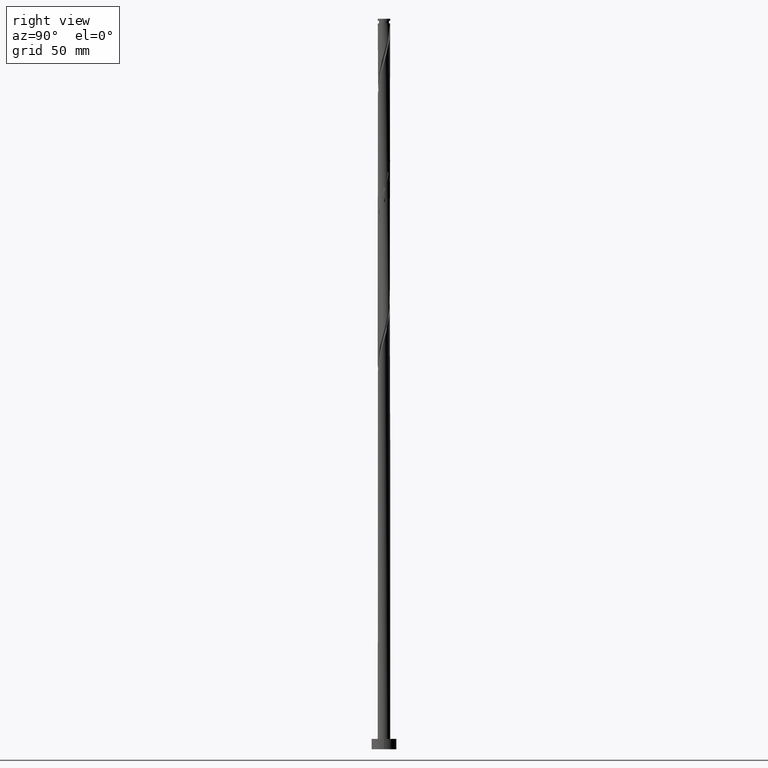
[diagram: clean part render]
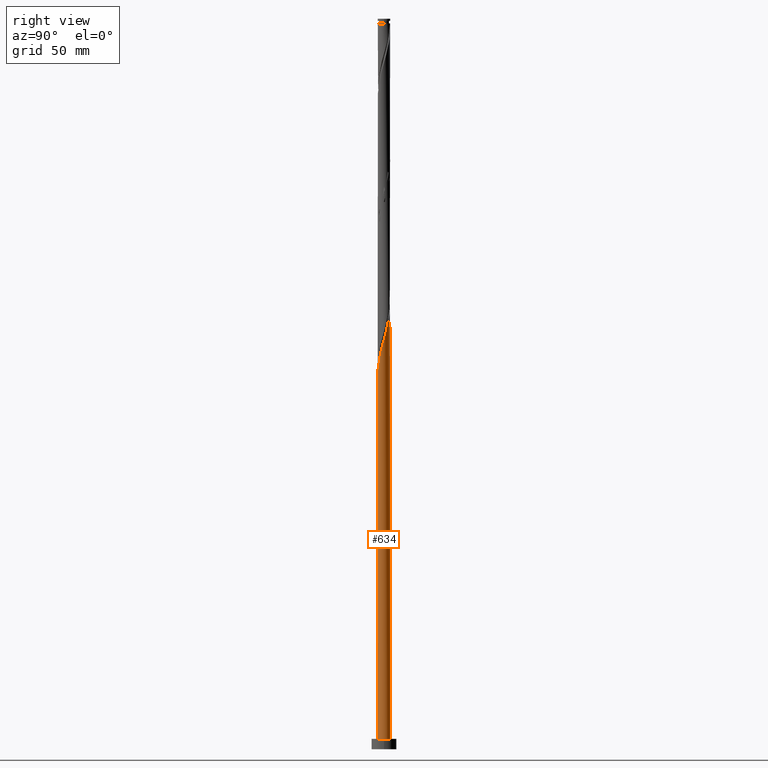
[diagram: same view with one face highlighted and labeled with its STEP entity id]
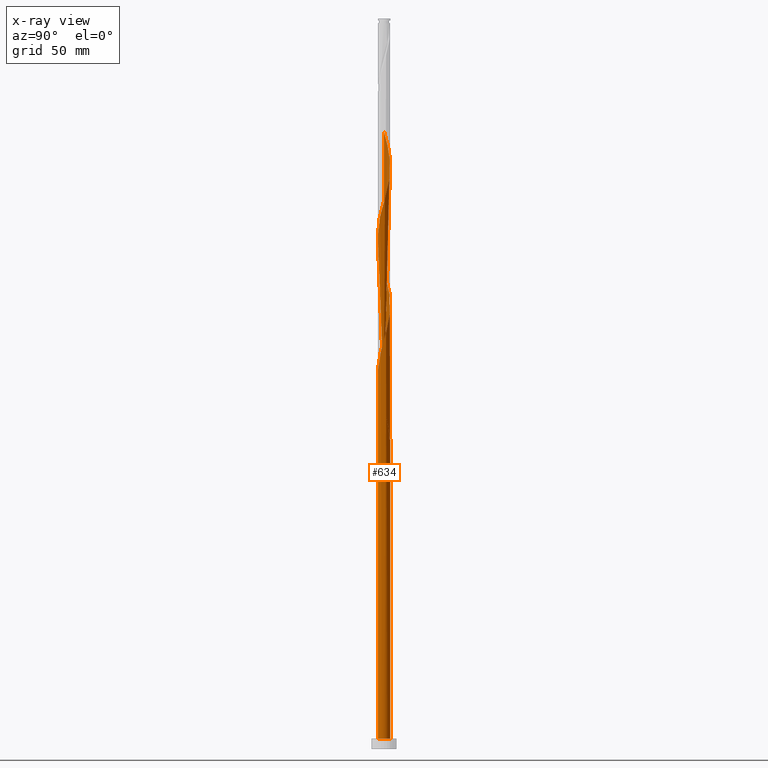
[diagram: x-ray of the same camera — body ghosted, the highlighted face saturated]
A machine part, right view. The second image highlights one B-rep face of the part: STEP entity #634.
The next image is the same camera in x-ray: the body ghosted, the highlighted face saturated — about 0% of this face is hidden behind the body in this view.
In plain terms, the highlighted cylindrical surface (bore or boss wall) has radius 3 mm, axis along (-0, -0, -1).
Its self-contained STEP definition (entity closure, byte-faithful):
#1 = CIRCLE ( 'NONE', #1276, 3.000000000000000444 ) ;
#10 = CARTESIAN_POINT ( 'NONE',  ( -0.2879860105828832562, 3.002746436205632641, 280.9817433603127483 ) ) ;
#20 = CARTESIAN_POINT ( 'NONE',  ( -2.844610918258240417, 0.9529893618115773402, 293.2039655825349200 ) ) ;
#33 = CARTESIAN_POINT ( 'NONE',  ( 0.000000000000000000, 0.000000000000000000, 148.7595211380904914 ) ) ;
#51 = VERTEX_POINT ( 'NONE', #382 ) ;
#57 = EDGE_CURVE ( 'NONE', #1315, #51, #763, .T. ) ;
#61 = CARTESIAN_POINT ( 'NONE',  ( 2.424175730171096443, -1.795214230025626634, 189.8706322492016341 ) ) ;
#66 = CIRCLE ( 'NONE', #1369, 3.000000000000000444 ) ;
#69 = CARTESIAN_POINT ( 'NONE',  ( -3.000000000000004441, 0.1709212123393005489, 296.0284865851844529 ) ) ;
#73 = CARTESIAN_POINT ( 'NONE',  ( 2.861491667719901599, 0.9010357570982406861, 199.8706322492016056 ) ) ;
#80 = CARTESIAN_POINT ( 'NONE',  ( 0.02731362638454095174, 2.999875658392152200, 279.8706322492016056 ) ) ;
#93 = CARTESIAN_POINT ( 'NONE',  ( -2.611625341554443036, -1.476283534877588233, 168.7595211380904914 ) ) ;
#109 = CARTESIAN_POINT ( 'NONE',  ( -3.016399812174364481, 0.02746407747455915926, 229.8706322492016341 ) ) ;
#116 = CARTESIAN_POINT ( 'NONE',  ( 2.980586974261067557, -0.3407363920471052632, 262.0928544714238342 ) ) ;
#129 = CARTESIAN_POINT ( 'NONE',  ( -2.038775222402707588, -2.223244857174724753, 238.7595211380905766 ) ) ;
#133 = CARTESIAN_POINT ( 'NONE',  ( -3.000000000000000444, -3.886588009372903973E-15, 167.5516310482786935 ) ) ;
#135 = VERTEX_POINT ( 'NONE', #1149 ) ;
#137 = CARTESIAN_POINT ( 'NONE',  ( -0.02731362638454053193, -2.999875658392152200, 246.5372989158682913 ) ) ;
#142 = CARTESIAN_POINT ( 'NONE',  ( -2.980586974261067557, 0.3407363920471048746, 162.0928544714238342 ) ) ;
#145 = CARTESIAN_POINT ( 'NONE',  ( -0.9582386936374932551, -2.860279830445438431, 243.2039655825348916 ) ) ;
#169 = CARTESIAN_POINT ( 'NONE',  ( -2.424175730171096887, 1.795214230025625968, 289.8706322492016625 ) ) ;
#179 = AXIS2_PLACEMENT_3D ( 'NONE', #1102, #820, #673 ) ;
#219 = CARTESIAN_POINT ( 'NONE',  ( -1.531984494871654778, -2.598546826576329849, 174.3150766936460627 ) ) ;
#244 = CARTESIAN_POINT ( 'NONE',  ( -2.861491667719897158, 0.9010357570982420183, 164.3150766936460627 ) ) ;
#248 = CARTESIAN_POINT ( 'NONE',  ( -0.9582386936374932551, -2.860279830445438431, 176.5372989158682913 ) ) ;
#256 = CARTESIAN_POINT ( 'NONE',  ( -1.785379858637177852, 2.410895841875524415, 157.6484100269793771 ) ) ;
#259 = CARTESIAN_POINT ( 'NONE',  ( -2.766788993523062512, -1.201790650553047346, 234.3150766936460343 ) ) ;
#269 = CARTESIAN_POINT ( 'NONE',  ( -2.861491667719901599, -0.9010357570982417963, 233.2039655825349485 ) ) ;
#279 = CARTESIAN_POINT ( 'NONE',  ( 1.245111594254573628, 2.729413328510883030, 208.7595211380904630 ) ) ;
#286 = CARTESIAN_POINT ( 'NONE',  ( -2.980586974261067557, 0.3407363920471048746, 228.7595211380904914 ) ) ;
#294 = DIRECTION ( 'NONE',  ( 0.000000000000000000, -0.000000000000000000, -1.000000000000000000 ) ) ;
#301 = CARTESIAN_POINT ( 'NONE',  ( -2.944774136347771964, 0.6540087066196513810, 160.9817433603127483 ) ) ;
#350 = CARTESIAN_POINT ( 'NONE',  ( 2.844610918258240417, -0.9529893618115785614, 193.2039655825349485 ) ) ;
#356 = CARTESIAN_POINT ( 'NONE',  ( 0.9582386936374936992, 2.860279830445437543, 276.5372989158683481 ) ) ;
#363 = FACE_OUTER_BOUND ( 'NONE', #533, .T. ) ;
#382 = CARTESIAN_POINT ( 'NONE',  ( -3.000000000000000444, 0.000000000000000000, 5.000000000000000000 ) ) ;
#383 = CARTESIAN_POINT ( 'NONE',  ( 0.2879860105828847550, -3.002746436205632641, 180.9817433603127768 ) ) ;
#391 = CARTESIAN_POINT ( 'NONE',  ( 1.997955648279249319, -2.259998966802001519, 187.6484100269794055 ) ) ;
#401 = CARTESIAN_POINT ( 'NONE',  ( 1.484415317302710591, -2.626010904050888772, 252.0928544714238910 ) ) ;
#410 = CARTESIAN_POINT ( 'NONE',  ( 2.611625341554443036, 1.476283534877588011, 268.7595211380904630 ) ) ;
#419 = CARTESIAN_POINT ( 'NONE',  ( -2.247618455994265574, -1.987010638188426048, 237.6484100269794055 ) ) ;
#424 = VERTEX_POINT ( 'NONE', #572 ) ;
#427 = CARTESIAN_POINT ( 'NONE',  ( 1.531984494871656111, 2.598546826576328961, 207.6484100269794055 ) ) ;
#435 = CARTESIAN_POINT ( 'NONE',  ( 1.785379858637181627, 2.410895841875526191, 206.5372989158682628 ) ) ;
#438 = LINE ( 'NONE', #1211, #1627 ) ;
#443 = CARTESIAN_POINT ( 'NONE',  ( -0.9059989139450641549, 2.877253563794376134, 283.2039655825349769 ) ) ;
#465 = CARTESIAN_POINT ( 'NONE',  ( -1.195207115623887040, 2.751632233922632675, 284.3150766936460059 ) ) ;
#466 = EDGE_CURVE ( 'NONE', #135, #1829, #438, .T. ) ;
#486 = DIRECTION ( 'NONE',  ( 0.000000000000000000, 0.000000000000000000, 1.000000000000000000 ) ) ;
#502 = CARTESIAN_POINT ( 'NONE',  ( 3.000000000000000444, 0.000000000000000000, 5.000000000000000000 ) ) ;
#507 = LINE ( 'NONE', #1225, #1496 ) ;
#532 = CARTESIAN_POINT ( 'NONE',  ( -1.245111594254573184, -2.729413328510883030, 175.4261878047571486 ) ) ;
#533 = EDGE_LOOP ( 'NONE', ( #1473, #1502, #1153, #848, #1787, #1553, #975, #668, #1219 ) ) ;
#537 = CARTESIAN_POINT ( 'NONE',  ( -2.456461689585819119, 1.750776419202127343, 160.9817433603127199 ) ) ;
#540 = CARTESIAN_POINT ( 'NONE',  ( 3.016399812174364481, -0.02746407747456011336, 263.2039655825349769 ) ) ;
#554 = CARTESIAN_POINT ( 'NONE',  ( -1.997955648279250429, 2.259998966802001075, 220.9817433603127199 ) ) ;
#561 = CARTESIAN_POINT ( 'NONE',  ( 0.9582386936374936992, 2.860279830445437543, 209.8706322492016056 ) ) ;
#567 = CARTESIAN_POINT ( 'NONE',  ( 1.741185482790979178, -2.443004935426446256, 253.2039655825348916 ) ) ;
#572 = CARTESIAN_POINT ( 'NONE',  ( -0.5969924622639739553, 2.940000000000003499, 148.7595211380904914 ) ) ;
#576 = CARTESIAN_POINT ( 'NONE',  ( 0.6504259784947304945, 2.928642355512055317, 210.9817433603127483 ) ) ;
#578 =( BOUNDED_CURVE ( )  B_SPLINE_CURVE ( 2, ( #1383, #1099, #1675, #818, #1257, #945, #93, #1218, #1530, #1839, #1684, #219, #532, #248, #935, #1119, #1239, #383, #967, #1706, #957, #1547, #1359, #391, #1554, #61, #1393, #669, #350, #1810, #1080, #807, #1667, #794, #73, #648, #1229, #1248, #1003, #1013, #435, #427, #279, #561, #576, #850, #995, #1421, #1141, #1723, #1717, #986, #1597, #554, #1577, #1164, #1432, #1731, #1274, #1588, #286, #109, #1749, #1296, #269, #259, #840, #1857, #419, #129, #704, #689, #1878, #145, #1307, #1885, #137, #1152, #862, #1444, #713, #401, #567, #1738, #870, #1895, #696, #722, #1022, #1606, #116, #540, #1134, #1451, #832, #1414, #410, #1267, #1127, #1288, #1565, #1868, #742, #356, #732, #1323, #80, #10, #941, #443, #465, #1470, #646, #1095, #1638, #169, #1043, #1381, #20, #595, #931, #69, #606 ),
 .UNSPECIFIED., .F., .T. ) 
 B_SPLINE_CURVE_WITH_KNOTS ( ( 3, 2, 2, 2, 2, 2, 2, 2, 2, 2, 2, 2, 2, 2, 2, 2, 2, 2, 2, 2, 2, 2, 2, 2, 2, 2, 2, 2, 2, 2, 2, 2, 2, 2, 2, 2, 2, 2, 2, 2, 2, 2, 2, 2, 2, 2, 2, 2, 2, 2, 2, 2, 2, 2, 2, 2, 2, 2, 2, 2, 2, 3 ),
 ( 0.05452860127731152390, 0.05833333333333334814, 0.06666666666666665186, 0.07499999999999995559, 0.08333333333333337034, 0.09166666666666667407, 0.09999999999999997780, 0.1083333333333332815, 0.1166666666666666963, 0.1250000000000000000, 0.1333333333333333037, 0.1416666666666667185, 0.1500000000000000222, 0.1583333333333333259, 0.1666666666666666297, 0.1750000000000000444, 0.1833333333333333481, 0.1916666666666666519, 0.1999999999999999556, 0.2083333333333333703, 0.2166666666666666741, 0.2249999999999999778, 0.2333333333333332815, 0.2416666666666666963, 0.2500000000000000000, 0.2583333333333333037, 0.2666666666666667185, 0.2750000000000000222, 0.2833333333333333259, 0.2916666666666666297, 0.3000000000000000444, 0.3083333333333333481, 0.3166666666666666519, 0.3249999999999999556, 0.3333333333333333703, 0.3416666666666666741, 0.3499999999999999778, 0.3583333333333332815, 0.3666666666666666963, 0.3750000000000000000, 0.3833333333333333037, 0.3916666666666667185, 0.4000000000000000222, 0.4083333333333333259, 0.4166666666666666297, 0.4250000000000000444, 0.4333333333333333481, 0.4416666666666666519, 0.4499999999999999556, 0.4583333333333333703, 0.4666666666666666741, 0.4749999999999999778, 0.4833333333333332815, 0.4916666666666666963, 0.5000000000000000000, 0.5083333333333333037, 0.5166666666666666075, 0.5250000000000000222, 0.5333333333333333259, 0.5416666666666667407, 0.5500000000000000444, 0.5545286012773114059 ),
 .UNSPECIFIED. ) 
 CURVE ( )  GEOMETRIC_REPRESENTATION_ITEM ( )  RATIONAL_B_SPLINE_CURVE ( ( 0.9066196499552447996, 0.9068171577856576349, 0.9090909090909565782, 0.9041108139712045189, 0.9090909090909565782, 0.9041108139712045189, 0.9090909090909565782, 0.9041108139712045189, 0.9090909090909565782, 0.9041108139712045189, 0.9090909090909565782, 0.9041108139712045189, 0.9090909090909565782, 0.9041108139712045189, 0.9090909090909565782, 0.9041108139712045189, 0.9090909090909565782, 0.9041108139712045189, 0.9090909090909565782, 0.9041108139712045189, 0.9090909090909565782, 0.9041108139712045189, 0.9090909090909565782, 0.9041108139712045189, 0.9090909090909565782, 0.9041108139712045189, 0.9090909090909565782, 0.9041108139712045189, 0.9090909090909565782, 0.9041108139712045189, 0.9090909090909565782, 0.9041108139712045189, 0.9090909090909565782, 0.9041108139712045189, 0.9090909090909565782, 0.9041108139712045189, 0.9090909090909565782, 0.9041108139712045189, 0.9090909090909565782, 0.9041108139712045189, 0.9090909090909565782, 0.9041108139712045189, 0.9090909090909565782, 0.9041108139712045189, 0.9090909090909565782, 0.9041108139712045189, 0.9090909090909565782, 0.9041108139712045189, 0.9090909090909565782, 0.9041108139712045189, 0.9090909090909565782, 0.9041108139712045189, 0.9090909090909565782, 0.9041108139712045189, 0.9090909090909565782, 0.9041108139712045189, 0.9090909090909565782, 0.9041108139712045189, 0.9090909090909565782, 0.9041108139712045189, 0.9090909090909565782, 0.9041108139712045189, 0.9090909090909565782, 0.9041108139712045189, 0.9090909090909565782, 0.9041108139712045189, 0.9090909090909565782, 0.9041108139712045189, 0.9090909090909565782, 0.9041108139712045189, 0.9090909090909565782, 0.9041108139712045189, 0.9090909090909565782, 0.9041108139712045189, 0.9090909090909565782, 0.9041108139712045189, 0.9090909090909565782, 0.9041108139712045189, 0.9090909090909565782, 0.9041108139712045189, 0.9090909090909565782, 0.9041108139712045189, 0.9090909090909565782, 0.9041108139712045189, 0.9090909090909565782, 0.9041108139712045189, 0.9090909090909565782, 0.9041108139712045189, 0.9090909090909565782, 0.9041108139712045189, 0.9090909090909565782, 0.9041108139712045189, 0.9090909090909565782, 0.9041108139712045189, 0.9090909090909565782, 0.9041108139712045189, 0.9090909090909565782, 0.9041108139712045189, 0.9090909090909565782, 0.9041108139712045189, 0.9090909090909565782, 0.9041108139712045189, 0.9090909090909565782, 0.9041108139712045189, 0.9090909090909565782, 0.9041108139712045189, 0.9090909090909565782, 0.9041108139712045189, 0.9090909090909565782, 0.9041108139712045189, 0.9090909090909565782, 0.9041108139712045189, 0.9090909090909565782, 0.9041108139712045189, 0.9090909090909565782, 0.9041108139712045189, 0.9090909090909565782, 0.9041108139712045189, 0.9090909090909565782, 0.9041108139712045189, 0.9090909090909565782, 0.9063845652765036842, 0.9066196499552447996 ) ) 
 REPRESENTATION_ITEM ( '' )  );
#582 = CARTESIAN_POINT ( 'NONE',  ( 0.2879860105828855876, 3.002746436205627312, 149.8706322492015772 ) ) ;
#591 = CARTESIAN_POINT ( 'NONE',  ( -2.424175730171096887, 1.795214230025625968, 156.5372989158682628 ) ) ;
#595 = CARTESIAN_POINT ( 'NONE',  ( -2.944774136347771964, 0.6540087066196513810, 294.3150766936459490 ) ) ;
#606 = CARTESIAN_POINT ( 'NONE',  ( -3.000000000000004441, -9.118533406605595878E-16, 296.6340778945690317 ) ) ;
#634 = ADVANCED_FACE ( 'NONE', ( #363 ), #949, .T. ) ;
#646 = CARTESIAN_POINT ( 'NONE',  ( -1.741185482790979400, 2.443004935426444479, 286.5372989158682913 ) ) ;
#648 = CARTESIAN_POINT ( 'NONE',  ( 2.766788993523062512, 1.201790650553045570, 200.9817433603126631 ) ) ;
#668 = ORIENTED_EDGE ( 'NONE', *, *, #1666, .T. ) ;
#669 = CARTESIAN_POINT ( 'NONE',  ( 2.744447700168709314, -1.251970017003503299, 192.0928544714238342 ) ) ;
#673 = DIRECTION ( 'NONE',  ( -1.000000000000000000, 0.000000000000000000, 0.000000000000000000 ) ) ;
#689 = CARTESIAN_POINT ( 'NONE',  ( -1.531984494871654778, -2.598546826576329849, 240.9817433603127483 ) ) ;
#694 = CARTESIAN_POINT ( 'NONE',  ( -1.531984494871651226, 2.598546826576326296, 156.5372989158683197 ) ) ;
#696 = CARTESIAN_POINT ( 'NONE',  ( 2.584311715169902435, -1.523592123514564856, 257.6484100269793203 ) ) ;
#704 = CARTESIAN_POINT ( 'NONE',  ( -1.785379858637181183, -2.410895841875526191, 239.8706322492016056 ) ) ;
#708 = CARTESIAN_POINT ( 'NONE',  ( -1.997955648279250429, 2.259998966802001075, 154.3150766936460343 ) ) ;
#710 = VERTEX_POINT ( 'NONE', #1251 ) ;
#713 = CARTESIAN_POINT ( 'NONE',  ( 1.195207115623886374, -2.751632233922632675, 250.9817433603126915 ) ) ;
#722 = CARTESIAN_POINT ( 'NONE',  ( 2.744447700168709314, -1.251970017003503299, 258.7595211380905198 ) ) ;
#723 = DIRECTION ( 'NONE',  ( 1.000000000000000000, 0.000000000000000000, 0.000000000000000000 ) ) ;
#732 = CARTESIAN_POINT ( 'NONE',  ( 0.6504259784947304945, 2.928642355512055317, 277.6484100269793771 ) ) ;
#742 = CARTESIAN_POINT ( 'NONE',  ( 1.245111594254573628, 2.729413328510883030, 275.4261878047571486 ) ) ;
#747 = CARTESIAN_POINT ( 'NONE',  ( -0.3426132633519632931, 2.997004880578669983, 152.0928544714238626 ) ) ;
#763 = CIRCLE ( 'NONE', #1808, 3.000000000000000444 ) ;
#794 = CARTESIAN_POINT ( 'NONE',  ( 2.956194341916742019, 0.6002808636434361356, 198.7595211380904914 ) ) ;
#807 = CARTESIAN_POINT ( 'NONE',  ( 3.016399812174364481, -0.02746407747456011336, 196.5372989158682913 ) ) ;
#818 = CARTESIAN_POINT ( 'NONE',  ( -2.956194341916742019, -0.6002808636434363576, 165.4261878047571770 ) ) ;
#820 = DIRECTION ( 'NONE',  ( -0.000000000000000000, -0.000000000000000000, -1.000000000000000000 ) ) ;
#832 = CARTESIAN_POINT ( 'NONE',  ( 2.861491667719901599, 0.9010357570982406861, 266.5372989158682913 ) ) ;
#840 = CARTESIAN_POINT ( 'NONE',  ( -2.611625341554443036, -1.476283534877588233, 235.4261878047570917 ) ) ;
#848 = ORIENTED_EDGE ( 'NONE', *, *, #1126, .T. ) ;
#850 = CARTESIAN_POINT ( 'NONE',  ( 0.3426132633519650139, 2.997004880578674424, 212.0928544714238342 ) ) ;
#857 = CARTESIAN_POINT ( 'NONE',  ( -2.584311715169902879, 1.523592123514564189, 157.6484100269793771 ) ) ;
#862 = CARTESIAN_POINT ( 'NONE',  ( 0.5969924622639743994, -2.940000000000003499, 248.7595211380904345 ) ) ;
#867 = CARTESIAN_POINT ( 'NONE',  ( -1.195207115623887040, 2.751632233922632675, 150.9817433603126915 ) ) ;
#870 = CARTESIAN_POINT ( 'NONE',  ( 2.211065689225173436, -2.027606598413813188, 255.4261878047571770 ) ) ;
#882 = CARTESIAN_POINT ( 'NONE',  ( -1.245111594254570964, 2.729413328510879921, 155.4261878047572338 ) ) ;
#931 = CARTESIAN_POINT ( 'NONE',  ( -2.980586974261067557, 0.3407363920471048746, 295.4261878047572054 ) ) ;
#935 = CARTESIAN_POINT ( 'NONE',  ( -0.6504259784947287182, -2.928642355512055317, 177.6484100269793487 ) ) ;
#941 = CARTESIAN_POINT ( 'NONE',  ( -0.5969924622639738443, 2.940000000000003499, 282.0928544714237205 ) ) ;
#945 = CARTESIAN_POINT ( 'NONE',  ( -2.766788993523062512, -1.201790650553047346, 167.6484100269794055 ) ) ;
#949 = CYLINDRICAL_SURFACE ( 'NONE', #179, 3.000000000000000444 ) ;
#957 = CARTESIAN_POINT ( 'NONE',  ( 1.195207115623886374, -2.751632233922632675, 184.3150766936460911 ) ) ;
#967 = CARTESIAN_POINT ( 'NONE',  ( 0.5969924622639743994, -2.940000000000003499, 182.0928544714238058 ) ) ;
#971 = CARTESIAN_POINT ( 'NONE',  ( -2.986297077045549475, 0.2864083930844394943, 166.5372989158682913 ) ) ;
#975 = ORIENTED_EDGE ( 'NONE', *, *, #1830, .F. ) ;
#983 = CARTESIAN_POINT ( 'NONE',  ( -2.247618455994262021, 1.987010638188424938, 159.8706322492016056 ) ) ;
#986 = CARTESIAN_POINT ( 'NONE',  ( -1.484415317302710813, 2.626010904050888772, 218.7595211380905198 ) ) ;
#995 = CARTESIAN_POINT ( 'NONE',  ( 0.02731362638454095174, 2.999875658392152200, 213.2039655825348916 ) ) ;
#999 = CARTESIAN_POINT ( 'NONE',  ( -0.6504259784947266088, 2.928642355512052653, 153.2039655825349485 ) ) ;
#1003 = CARTESIAN_POINT ( 'NONE',  ( 2.247618455994266462, 1.987010638188425604, 204.3150766936460059 ) ) ;
#1013 = CARTESIAN_POINT ( 'NONE',  ( 2.038775222402708476, 2.223244857174724753, 205.4261878047571770 ) ) ;
#1015 = CARTESIAN_POINT ( 'NONE',  ( 0.000000000000000000, 0.000000000000000000, 5.000000000000000000 ) ) ;
#1022 = CARTESIAN_POINT ( 'NONE',  ( 2.844610918258240417, -0.9529893618115785614, 259.8706322492015488 ) ) ;
#1037 = CARTESIAN_POINT ( 'NONE',  ( -1.484415317302710813, 2.626010904050888772, 152.0928544714238626 ) ) ;
#1043 = CARTESIAN_POINT ( 'NONE',  ( -2.584311715169902879, 1.523592123514564189, 290.9817433603126346 ) ) ;
#1072 = DIRECTION ( 'NONE',  ( 1.000000000000000000, 0.000000000000000000, 0.000000000000000000 ) ) ;
#1080 = CARTESIAN_POINT ( 'NONE',  ( 2.980586974261067557, -0.3407363920471052632, 195.4261878047571201 ) ) ;
#1095 = CARTESIAN_POINT ( 'NONE',  ( -1.997955648279250429, 2.259998966802001075, 287.6484100269793771 ) ) ;
#1099 = CARTESIAN_POINT ( 'NONE',  ( -3.000000000000003997, -0.1435319978602505042, 163.8092930867996699 ) ) ;
#1102 = CARTESIAN_POINT ( 'NONE',  ( 0.000000000000000000, 0.000000000000000000, 351.0000000000000000 ) ) ;
#1115 = CARTESIAN_POINT ( 'NONE',  ( -2.999999999999999556, 0.1435319978602474233, 167.0430825227145704 ) ) ;
#1119 = CARTESIAN_POINT ( 'NONE',  ( -0.3426132633519646253, -2.997004880578674424, 178.7595211380904630 ) ) ;
#1126 = EDGE_CURVE ( 'NONE', #51, #1315, #66, .T. ) ;
#1127 = CARTESIAN_POINT ( 'NONE',  ( 2.247618455994266462, 1.987010638188425604, 270.9817433603127483 ) ) ;
#1134 = CARTESIAN_POINT ( 'NONE',  ( 2.986297077045553916, 0.2864083930844367187, 264.3150766936460059 ) ) ;
#1138 = CARTESIAN_POINT ( 'NONE',  ( -0.02731362638453866884, 2.999875658392149536, 150.9817433603127199 ) ) ;
#1141 = CARTESIAN_POINT ( 'NONE',  ( -0.5969924622639738443, 2.940000000000003499, 215.4261878047571770 ) ) ;
#1149 = CARTESIAN_POINT ( 'NONE',  ( -3.000000000000004441, -9.118533406605595878E-16, 296.6340778945690317 ) ) ;
#1152 = CARTESIAN_POINT ( 'NONE',  ( 0.2879860105828847550, -3.002746436205632641, 247.6484100269794055 ) ) ;
#1153 = ORIENTED_EDGE ( 'NONE', *, *, #1607, .T. ) ;
#1164 = CARTESIAN_POINT ( 'NONE',  ( -2.424175730171096887, 1.795214230025625968, 223.2039655825349769 ) ) ;
#1169 = CARTESIAN_POINT ( 'NONE',  ( -0.5969924622639738443, 2.940000000000003499, 148.7595211380904914 ) ) ;
#1202 = CARTESIAN_POINT ( 'NONE',  ( 0.5969924622639751766, 2.939999999999999947, 148.7595211380904914 ) ) ;
#1211 = CARTESIAN_POINT ( 'NONE',  ( -3.000000000000000444, 0.000000000000000000, 351.0000000000000000 ) ) ;
#1218 = CARTESIAN_POINT ( 'NONE',  ( -2.456461689585824892, -1.750776419202128897, 169.8706322492016625 ) ) ;
#1219 = ORIENTED_EDGE ( 'NONE', *, *, #1770, .F. ) ;
#1225 = CARTESIAN_POINT ( 'NONE',  ( -3.000000000000000444, 0.000000000000000000, 351.0000000000000000 ) ) ;
#1229 = CARTESIAN_POINT ( 'NONE',  ( 2.611625341554443036, 1.476283534877588011, 202.0928544714238342 ) ) ;
#1239 = CARTESIAN_POINT ( 'NONE',  ( -0.02731362638454053193, -2.999875658392152200, 179.8706322492015772 ) ) ;
#1248 = CARTESIAN_POINT ( 'NONE',  ( 2.456461689585825781, 1.750776419202128231, 203.2039655825349769 ) ) ;
#1251 = CARTESIAN_POINT ( 'NONE',  ( -3.000000000000005329, -3.169064069180961934E-15, 163.3007445612356605 ) ) ;
#1257 = CARTESIAN_POINT ( 'NONE',  ( -2.861491667719901599, -0.9010357570982417963, 166.5372989158682344 ) ) ;
#1265 = VERTEX_POINT ( 'NONE', #1202 ) ;
#1267 = CARTESIAN_POINT ( 'NONE',  ( 2.456461689585825781, 1.750776419202128231, 269.8706322492016056 ) ) ;
#1274 = CARTESIAN_POINT ( 'NONE',  ( -2.844610918258240417, 0.9529893618115773402, 226.5372989158682344 ) ) ;
#1276 = AXIS2_PLACEMENT_3D ( 'NONE', #33, #294, #1620 ) ;
#1288 = CARTESIAN_POINT ( 'NONE',  ( 2.038775222402708476, 2.223244857174724753, 272.0928544714238342 ) ) ;
#1296 = CARTESIAN_POINT ( 'NONE',  ( -2.956194341916742019, -0.6002808636434363576, 232.0928544714238626 ) ) ;
#1307 = CARTESIAN_POINT ( 'NONE',  ( -0.6504259784947287182, -2.928642355512055317, 244.3150766936460059 ) ) ;
#1315 = VERTEX_POINT ( 'NONE', #502 ) ;
#1323 = CARTESIAN_POINT ( 'NONE',  ( 0.3426132633519650139, 2.997004880578674424, 278.7595211380905766 ) ) ;
#1328 = CARTESIAN_POINT ( 'NONE',  ( 0.5969924622639751766, 2.939999999999999947, 148.7595211380904914 ) ) ;
#1354 = DIRECTION ( 'NONE',  ( -0.000000000000000000, -0.000000000000000000, -1.000000000000000000 ) ) ;
#1359 = CARTESIAN_POINT ( 'NONE',  ( 1.741185482790979178, -2.443004935426446256, 186.5372989158682344 ) ) ;
#1369 = AXIS2_PLACEMENT_3D ( 'NONE', #1015, #1452, #723 ) ;
#1381 = CARTESIAN_POINT ( 'NONE',  ( -2.744447700168709758, 1.251970017003502633, 292.0928544714238910 ) ) ;
#1383 = CARTESIAN_POINT ( 'NONE',  ( -3.000000000000005329, -3.169064069180962328E-15, 163.3007445612356605 ) ) ;
#1393 = CARTESIAN_POINT ( 'NONE',  ( 2.584311715169902435, -1.523592123514564856, 190.9817433603126915 ) ) ;
#1414 = CARTESIAN_POINT ( 'NONE',  ( 2.766788993523062512, 1.201790650553045570, 267.6484100269793771 ) ) ;
#1421 = CARTESIAN_POINT ( 'NONE',  ( -0.2879860105828832562, 3.002746436205632641, 214.3150766936460627 ) ) ;
#1423 =( BOUNDED_CURVE ( )  B_SPLINE_CURVE ( 2, ( #1845, #1115, #971, #1551, #244, #1854, #1711, #537, #983, #1562, #256, #694, #882, #1891, #999, #747, #1138, #582, #1328 ),
 .UNSPECIFIED., .F., .F. ) 
 B_SPLINE_CURVE_WITH_KNOTS ( ( 3, 2, 2, 2, 2, 2, 2, 2, 2, 3 ),
 ( 0.9295286012773114059, 0.9333333333333333481, 0.9416666666666666519, 0.9499999999999999556, 0.9583333333333333703, 0.9666666666666666741, 0.9749999999999999778, 0.9833333333333332815, 0.9916666666666666963, 1.000000000000000000 ),
 .UNSPECIFIED. ) 
 CURVE ( )  GEOMETRIC_REPRESENTATION_ITEM ( )  RATIONAL_B_SPLINE_CURVE ( ( 0.9066196499552384713, 0.9068171577856511956, 0.9090909090909501389, 0.9041108139711984126, 0.9090909090909501389, 0.9041108139711984126, 0.9090909090909501389, 0.9041108139711984126, 0.9090909090909501389, 0.9041108139711984126, 0.9090909090909501389, 0.9041108139711984126, 0.9090909090909501389, 0.9041108139711984126, 0.9090909090909501389, 0.9041108139711984126, 0.9090909090909501389, 0.9041108139711984126, 0.9090909090909501389 ) ) 
 REPRESENTATION_ITEM ( '' )  );
#1429 = EDGE_CURVE ( 'NONE', #710, #135, #578, .T. ) ;
#1432 = CARTESIAN_POINT ( 'NONE',  ( -2.584311715169902879, 1.523592123514564189, 224.3150766936460627 ) ) ;
#1439 = CARTESIAN_POINT ( 'NONE',  ( -3.000000000000005329, 0.1709212123392961358, 162.6951532518511669 ) ) ;
#1444 = CARTESIAN_POINT ( 'NONE',  ( 0.9059989139450630447, -2.877253563794377023, 249.8706322492016625 ) ) ;
#1451 = CARTESIAN_POINT ( 'NONE',  ( 2.956194341916742019, 0.6002808636434361356, 265.4261878047572623 ) ) ;
#1452 = DIRECTION ( 'NONE',  ( 0.000000000000000000, 0.000000000000000000, 1.000000000000000000 ) ) ;
#1455 = CARTESIAN_POINT ( 'NONE',  ( -0.9059989139450641549, 2.877253563794376134, 149.8706322492016341 ) ) ;
#1465 = CARTESIAN_POINT ( 'NONE',  ( -2.844610918258240417, 0.9529893618115773402, 159.8706322492015488 ) ) ;
#1470 = CARTESIAN_POINT ( 'NONE',  ( -1.484415317302710813, 2.626010904050888772, 285.4261878047571486 ) ) ;
#1473 = ORIENTED_EDGE ( 'NONE', *, *, #466, .F. ) ;
#1496 = VECTOR ( 'NONE', #1516, 1000.000000000000000 ) ;
#1502 = ORIENTED_EDGE ( 'NONE', *, *, #1429, .F. ) ;
#1516 = DIRECTION ( 'NONE',  ( -0.000000000000000000, -0.000000000000000000, -1.000000000000000000 ) ) ;
#1530 = CARTESIAN_POINT ( 'NONE',  ( -2.247618455994265574, -1.987010638188426048, 170.9817433603127199 ) ) ;
#1547 = CARTESIAN_POINT ( 'NONE',  ( 1.484415317302710591, -2.626010904050888772, 185.4261878047571770 ) ) ;
#1551 = CARTESIAN_POINT ( 'NONE',  ( -2.956194341916737578, 0.6002808636434364686, 165.4261878047571486 ) ) ;
#1553 = ORIENTED_EDGE ( 'NONE', *, *, #1607, .F. ) ;
#1554 = CARTESIAN_POINT ( 'NONE',  ( 2.211065689225173436, -2.027606598413813188, 188.7595211380905198 ) ) ;
#1562 = CARTESIAN_POINT ( 'NONE',  ( -2.038775222402704035, 2.223244857174722089, 158.7595211380904914 ) ) ;
#1565 = CARTESIAN_POINT ( 'NONE',  ( 1.785379858637181627, 2.410895841875526191, 273.2039655825348632 ) ) ;
#1577 = CARTESIAN_POINT ( 'NONE',  ( -2.211065689225174324, 2.027606598413813188, 222.0928544714237489 ) ) ;
#1588 = CARTESIAN_POINT ( 'NONE',  ( -2.944774136347771964, 0.6540087066196513810, 227.6484100269794055 ) ) ;
#1597 = CARTESIAN_POINT ( 'NONE',  ( -1.741185482790979400, 2.443004935426444479, 219.8706322492016056 ) ) ;
#1601 = CARTESIAN_POINT ( 'NONE',  ( -3.000000000000005329, -3.169064069180962328E-15, 163.3007445612356605 ) ) ;
#1606 = CARTESIAN_POINT ( 'NONE',  ( 2.944774136347771076, -0.6540087066196532684, 260.9817433603126915 ) ) ;
#1607 = EDGE_CURVE ( 'NONE', #710, #51, #507, .T. ) ;
#1620 = DIRECTION ( 'NONE',  ( -1.000000000000000000, 0.000000000000000000, 0.000000000000000000 ) ) ;
#1625 = CARTESIAN_POINT ( 'NONE',  ( -2.211065689225174324, 2.027606598413813188, 155.4261878047571201 ) ) ;
#1627 = VECTOR ( 'NONE', #1354, 1000.000000000000000 ) ;
#1638 = CARTESIAN_POINT ( 'NONE',  ( -2.211065689225174324, 2.027606598413813188, 288.7595211380904630 ) ) ;
#1666 = EDGE_CURVE ( 'NONE', #424, #1265, #1, .T. ) ;
#1667 = CARTESIAN_POINT ( 'NONE',  ( 2.986297077045553916, 0.2864083930844367187, 197.6484100269794055 ) ) ;
#1675 = CARTESIAN_POINT ( 'NONE',  ( -2.986297077045553916, -0.2864083930844382730, 164.3150766936460059 ) ) ;
#1684 = CARTESIAN_POINT ( 'NONE',  ( -1.785379858637181183, -2.410895841875526191, 173.2039655825349200 ) ) ;
#1706 = CARTESIAN_POINT ( 'NONE',  ( 0.9059989139450630447, -2.877253563794377023, 183.2039655825349485 ) ) ;
#1711 = CARTESIAN_POINT ( 'NONE',  ( -2.611625341554438595, 1.476283534877586678, 162.0928544714238626 ) ) ;
#1717 = CARTESIAN_POINT ( 'NONE',  ( -1.195207115623887040, 2.751632233922632675, 217.6484100269792918 ) ) ;
#1723 = CARTESIAN_POINT ( 'NONE',  ( -0.9059989139450641549, 2.877253563794376134, 216.5372989158683481 ) ) ;
#1727 = CARTESIAN_POINT ( 'NONE',  ( -1.741185482790979400, 2.443004935426444479, 153.2039655825349485 ) ) ;
#1731 = CARTESIAN_POINT ( 'NONE',  ( -2.744447700168709758, 1.251970017003502633, 225.4261878047571486 ) ) ;
#1738 = CARTESIAN_POINT ( 'NONE',  ( 1.997955648279249319, -2.259998966802001519, 254.3150766936460059 ) ) ;
#1745 = CARTESIAN_POINT ( 'NONE',  ( -2.744447700168709758, 1.251970017003502633, 158.7595211380904914 ) ) ;
#1749 = CARTESIAN_POINT ( 'NONE',  ( -2.986297077045553916, -0.2864083930844382730, 230.9817433603127199 ) ) ;
#1770 = EDGE_CURVE ( 'NONE', #1829, #1265, #1423, .T. ) ;
#1787 = ORIENTED_EDGE ( 'NONE', *, *, #57, .T. ) ;
#1798 = CARTESIAN_POINT ( 'NONE',  ( 0.000000000000000000, 0.000000000000000000, 5.000000000000000000 ) ) ;
#1808 = AXIS2_PLACEMENT_3D ( 'NONE', #1798, #486, #1072 ) ;
#1810 = CARTESIAN_POINT ( 'NONE',  ( 2.944774136347771076, -0.6540087066196532684, 194.3150766936460911 ) ) ;
#1819 =( BOUNDED_CURVE ( )  B_SPLINE_CURVE ( 2, ( #1169, #1455, #867, #1037, #1727, #708, #1625, #591, #857, #1745, #1465, #301, #142, #1439, #1601 ),
 .UNSPECIFIED., .F., .F. ) 
 B_SPLINE_CURVE_WITH_KNOTS ( ( 3, 2, 2, 2, 2, 2, 2, 3 ),
 ( 0.000000000000000000, 0.008333333333333303727, 0.01666666666666671848, 0.02500000000000002220, 0.03333333333333332593, 0.04166666666666662966, 0.05000000000000004441, 0.05452860127731152390 ),
 .UNSPECIFIED. ) 
 CURVE ( )  GEOMETRIC_REPRESENTATION_ITEM ( )  RATIONAL_B_SPLINE_CURVE ( ( 0.9090909090909565782, 0.9041108139712045189, 0.9090909090909565782, 0.9041108139712045189, 0.9090909090909565782, 0.9041108139712045189, 0.9090909090909565782, 0.9041108139712045189, 0.9090909090909565782, 0.9041108139712045189, 0.9090909090909565782, 0.9041108139712045189, 0.9090909090909565782, 0.9063845652765034622, 0.9066196499552447996 ) ) 
 REPRESENTATION_ITEM ( '' )  );
#1829 = VERTEX_POINT ( 'NONE', #133 ) ;
#1830 = EDGE_CURVE ( 'NONE', #424, #710, #1819, .T. ) ;
#1839 = CARTESIAN_POINT ( 'NONE',  ( -2.038775222402707588, -2.223244857174724753, 172.0928544714238342 ) ) ;
#1845 = CARTESIAN_POINT ( 'NONE',  ( -3.000000000000000444, -3.886588009372903973E-15, 167.5516310482787219 ) ) ;
#1854 = CARTESIAN_POINT ( 'NONE',  ( -2.766788993523057183, 1.201790650553046902, 163.2039655825349485 ) ) ;
#1857 = CARTESIAN_POINT ( 'NONE',  ( -2.456461689585824892, -1.750776419202128897, 236.5372989158682913 ) ) ;
#1868 = CARTESIAN_POINT ( 'NONE',  ( 1.531984494871656111, 2.598546826576328961, 274.3150766936460059 ) ) ;
#1878 = CARTESIAN_POINT ( 'NONE',  ( -1.245111594254573184, -2.729413328510883030, 242.0928544714238058 ) ) ;
#1885 = CARTESIAN_POINT ( 'NONE',  ( -0.3426132633519646253, -2.997004880578674424, 245.4261878047571770 ) ) ;
#1891 = CARTESIAN_POINT ( 'NONE',  ( -0.9582386936374900355, 2.860279830445433547, 154.3150766936460911 ) ) ;
#1895 = CARTESIAN_POINT ( 'NONE',  ( 2.424175730171096443, -1.795214230025626634, 256.5372989158682913 ) ) ;